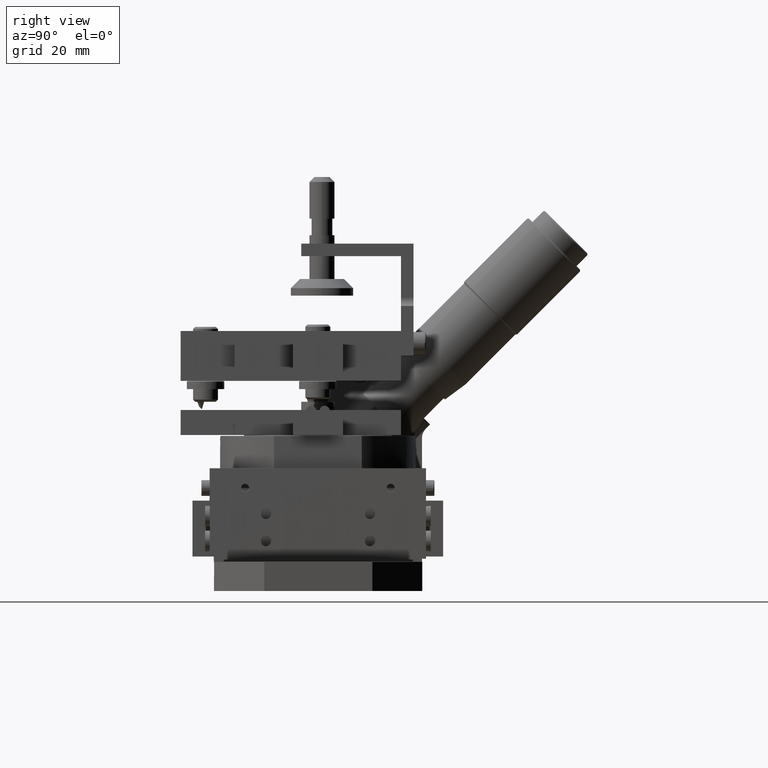
[diagram: clean part render]
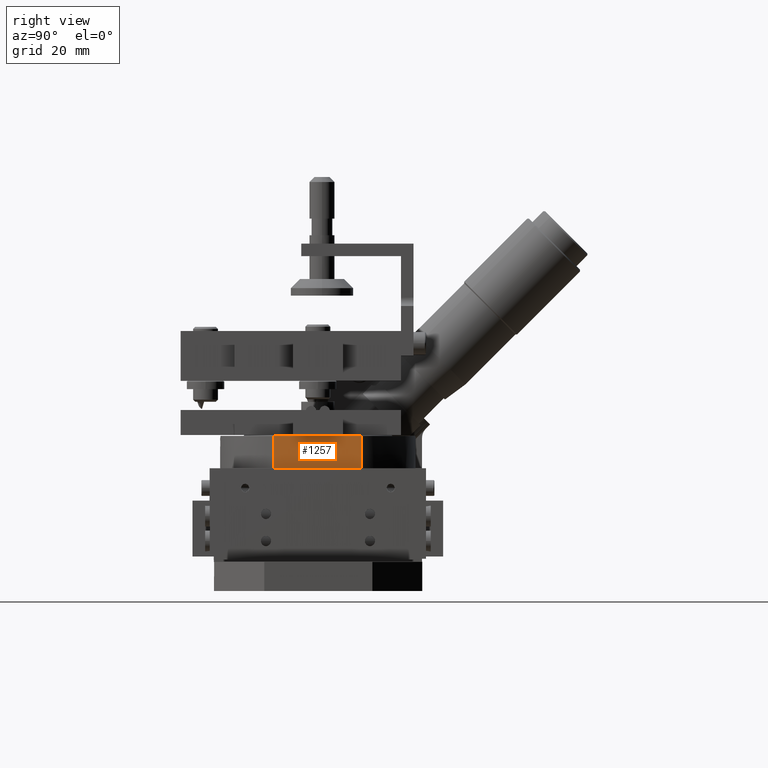
[diagram: same view with one face highlighted and labeled with its STEP entity id]
A machine part, right view. The second image highlights one B-rep face of the part: STEP entity #1257.
In plain terms, the highlighted face is a freeform B-spline surface patch.
Its self-contained STEP definition (entity closure, byte-faithful):
#1257=ADVANCED_FACE('',(#2461),#42735,.T.);
#2461=FACE_OUTER_BOUND('',#3748,.T.);
#3748=EDGE_LOOP('',(#6721,#6722,#6723,#6724));
#6721=ORIENTED_EDGE('',*,*,#35598,.F.);
#6722=ORIENTED_EDGE('',*,*,#35609,.T.);
#6723=ORIENTED_EDGE('',*,*,#35586,.F.);
#6724=ORIENTED_EDGE('',*,*,#35604,.F.);
#13082=PCURVE('',#42728,#19485);
#13106=PCURVE('',#42733,#19509);
#13115=PCURVE('',#43280,#19518);
#13124=PCURVE('',#42735,#19527);
#13125=PCURVE('',#42735,#19528);
#13126=PCURVE('',#42735,#19529);
#13127=PCURVE('',#42735,#19530);
#13135=PCURVE('',#43281,#19538);
#19485=DEFINITIONAL_REPRESENTATION('',(#26238),#93713);
#19509=DEFINITIONAL_REPRESENTATION('',(#26242),#93713);
#19518=DEFINITIONAL_REPRESENTATION('',(#26251),#93713);
#19527=DEFINITIONAL_REPRESENTATION('',(#26262),#93713);
#19528=DEFINITIONAL_REPRESENTATION('',(#26264),#93713);
#19529=DEFINITIONAL_REPRESENTATION('',(#26265),#93713);
#19530=DEFINITIONAL_REPRESENTATION('',(#26266),#93713);
#19538=DEFINITIONAL_REPRESENTATION('',(#26274),#93713);
#26237=B_SPLINE_CURVE_WITH_KNOTS('',1,(#60369,#60370),.UNSPECIFIED.,.F.,
 .F.,(2,2),(0.,21.0948912658332),.UNSPECIFIED.);
#26238=B_SPLINE_CURVE_WITH_KNOTS('',1,(#60371,#60372),.UNSPECIFIED.,.F.,
 .F.,(2,2),(0.,21.0948912658332),.UNSPECIFIED.);
#26241=B_SPLINE_CURVE_WITH_KNOTS('',1,(#60541,#60542),.UNSPECIFIED.,.F.,
 .F.,(2,2),(0.,21.0948912658332),.UNSPECIFIED.);
#26242=B_SPLINE_CURVE_WITH_KNOTS('',1,(#60543,#60544),.UNSPECIFIED.,.F.,
 .F.,(2,2),(0.,21.0948912658332),.UNSPECIFIED.);
#26250=B_SPLINE_CURVE_WITH_KNOTS('',1,(#60593,#60594),.UNSPECIFIED.,.F.,
 .F.,(2,2),(0.,7.8),.UNSPECIFIED.);
#26251=B_SPLINE_CURVE_WITH_KNOTS('',1,(#60595,#60596),.UNSPECIFIED.,.F.,
 .F.,(2,2),(0.,7.8),.UNSPECIFIED.);
#26262=B_SPLINE_CURVE_WITH_KNOTS('',1,(#60647,#60648),.UNSPECIFIED.,.F.,
 .F.,(2,2),(0.,21.0948912658332),.UNSPECIFIED.);
#26263=B_SPLINE_CURVE_WITH_KNOTS('',1,(#60649,#60650),.UNSPECIFIED.,.F.,
 .F.,(2,2),(0.,7.8),.UNSPECIFIED.);
#26264=B_SPLINE_CURVE_WITH_KNOTS('',1,(#60651,#60652),.UNSPECIFIED.,.F.,
 .F.,(2,2),(0.,7.8),.UNSPECIFIED.);
#26265=B_SPLINE_CURVE_WITH_KNOTS('',1,(#60653,#60654),.UNSPECIFIED.,.F.,
 .F.,(2,2),(0.,21.0948912658332),.UNSPECIFIED.);
#26266=B_SPLINE_CURVE_WITH_KNOTS('',1,(#60655,#60656),.UNSPECIFIED.,.F.,
 .F.,(2,2),(0.,7.8),.UNSPECIFIED.);
#26274=B_SPLINE_CURVE_WITH_KNOTS('',1,(#60677,#60678),.UNSPECIFIED.,.F.,
 .F.,(2,2),(0.,7.8),.UNSPECIFIED.);
#32246=SURFACE_CURVE('',#26237,(#13082,#13126),.PCURVE_S1.);
#32258=SURFACE_CURVE('',#26241,(#13106,#13124),.PCURVE_S1.);
#32264=SURFACE_CURVE('',#26250,(#13115,#13127),.PCURVE_S1.);
#32269=SURFACE_CURVE('',#26263,(#13125,#13135),.PCURVE_S1.);
#35586=EDGE_CURVE('',#41086,#41087,#32246,.T.);
#35598=EDGE_CURVE('',#41102,#41103,#32258,.T.);
#35604=EDGE_CURVE('',#41103,#41086,#32264,.T.);
#35609=EDGE_CURVE('',#41102,#41087,#32269,.T.);
#41086=VERTEX_POINT('',#51201);
#41087=VERTEX_POINT('',#51202);
#41102=VERTEX_POINT('',#51217);
#41103=VERTEX_POINT('',#51218);
#42728=B_SPLINE_SURFACE_WITH_KNOTS('',1,1,((#48105,#48106),(#48107,#48108)),
 .UNSPECIFIED.,.F.,.F.,.F.,(2,2),(2,2),(-30.1617532305088,30.1617532305098),
(-31.3601504183312,31.3601504183315),.UNSPECIFIED.);
#42733=B_SPLINE_SURFACE_WITH_KNOTS('',1,1,((#48125,#48126),(#48127,#48128)),
 .UNSPECIFIED.,.F.,.F.,.F.,(2,2),(2,2),(-28.348342223276,28.3483422232772),
(-25.3472048446021,25.3472048446027),.UNSPECIFIED.);
#42735=B_SPLINE_SURFACE_WITH_KNOTS('',1,1,((#48151,#48152),(#48153,#48154)),
 .UNSPECIFIED.,.F.,.F.,.F.,(2,2),(2,2),(-2.22956924044961,23.3244605062828),
(-0.900000000000059,8.7000000000001),.UNSPECIFIED.);
#43280=(
BOUNDED_SURFACE()
B_SPLINE_SURFACE(2,1,((#48133,#48134),(#48135,#48136),(#48137,#48138),(#48139,
#48140),(#48141,#48142),(#48143,#48144),(#48145,#48146),(#48147,#48148),
(#48149,#48150)),.UNSPECIFIED.,.T.,.F.,.F.)
B_SPLINE_SURFACE_WITH_KNOTS((3,2,2,2,3),(2,2),(0.,36.9134829689699,73.8269659379398,
110.74044890691,147.65393187588),(0.,9.60000000000031),.UNSPECIFIED.)
GEOMETRIC_REPRESENTATION_ITEM()
RATIONAL_B_SPLINE_SURFACE(((1.,1.),(0.707106781186548,0.707106781186548),
(1.,1.),(0.707106781186548,0.707106781186548),(1.,1.),(0.707106781186548,
0.707106781186548),(1.,1.),(0.707106781186548,0.707106781186548),(1.,1.)))
REPRESENTATION_ITEM('')
SURFACE()
);
#43281=(
BOUNDED_SURFACE()
B_SPLINE_SURFACE(2,1,((#48155,#48156),(#48157,#48158),(#48159,#48160),(#48161,
#48162),(#48163,#48164),(#48165,#48166),(#48167,#48168),(#48169,#48170),
(#48171,#48172)),.UNSPECIFIED.,.T.,.F.,.F.)
B_SPLINE_SURFACE_WITH_KNOTS((3,2,2,2,3),(2,2),(0.,36.9134829689699,73.8269659379398,
110.74044890691,147.65393187588),(0.,9.60000000000029),.UNSPECIFIED.)
GEOMETRIC_REPRESENTATION_ITEM()
RATIONAL_B_SPLINE_SURFACE(((1.,1.),(0.707106781186548,0.707106781186548),
(1.,1.),(0.707106781186548,0.707106781186548),(1.,1.),(0.707106781186548,
0.707106781186548),(1.,1.),(0.707106781186548,0.707106781186548),(1.,1.)))
REPRESENTATION_ITEM('')
SURFACE()
);
#48105=CARTESIAN_POINT('',(250.48515553731,66.6139220482595,-52.4570928903042));
#48106=CARTESIAN_POINT('',(250.527042572495,66.6139220482596,-115.177379740077));
#48107=CARTESIAN_POINT('',(190.161662528686,66.6139220482594,-52.4973792537928));
#48108=CARTESIAN_POINT('',(190.203549563871,66.6139220482595,-115.217666103565));
#48125=CARTESIAN_POINT('',(194.97828378429,58.8139220482593,-55.506033894403));
#48126=CARTESIAN_POINT('',(245.672682168429,58.8139220482594,-55.4721782130046));
#48127=CARTESIAN_POINT('',(195.016148016199,58.8139220482594,-112.202705697358));
#48128=CARTESIAN_POINT('',(245.710546400338,58.8139220482595,-112.168850015959));
#48133=CARTESIAN_POINT('',(220.344415092314,57.9139220482593,-107.337295080181));
#48134=CARTESIAN_POINT('',(220.344415092314,67.5139220482596,-107.337295080181));
#48135=CARTESIAN_POINT('',(196.844561967314,57.9139220482593,-107.337295080181));
#48136=CARTESIAN_POINT('',(196.844561967314,67.5139220482596,-107.337295080181));
#48137=CARTESIAN_POINT('',(196.844561967314,57.9139220482593,-83.8374419551806));
#48138=CARTESIAN_POINT('',(196.844561967314,67.5139220482596,-83.8374419551806));
#48139=CARTESIAN_POINT('',(196.844561967314,57.9139220482593,-60.3375888301804));
#48140=CARTESIAN_POINT('',(196.844561967314,67.5139220482596,-60.3375888301804));
#48141=CARTESIAN_POINT('',(220.344415092314,57.9139220482593,-60.3375888301804));
#48142=CARTESIAN_POINT('',(220.344415092314,67.5139220482596,-60.3375888301804));
#48143=CARTESIAN_POINT('',(243.844268217314,57.9139220482593,-60.3375888301804));
#48144=CARTESIAN_POINT('',(243.844268217314,67.5139220482596,-60.3375888301804));
#48145=CARTESIAN_POINT('',(243.844268217314,57.9139220482593,-83.8374419551806));
#48146=CARTESIAN_POINT('',(243.844268217314,67.5139220482596,-83.8374419551806));
#48147=CARTESIAN_POINT('',(243.844268217314,57.9139220482593,-107.337295080181));
#48148=CARTESIAN_POINT('',(243.844268217314,67.5139220482596,-107.337295080181));
#48149=CARTESIAN_POINT('',(220.344415092314,57.9139220482593,-107.337295080181));
#48150=CARTESIAN_POINT('',(220.344415092314,67.5139220482596,-107.337295080181));
#48151=CARTESIAN_POINT('',(241.335746176084,57.9139220482593,-71.0464054091064));
#48152=CARTESIAN_POINT('',(241.335746176084,67.5139220482595,-71.0464054091064));
#48153=CARTESIAN_POINT('',(241.352812142428,57.9139220482594,-96.600429457183));
#48154=CARTESIAN_POINT('',(241.352812142428,67.5139220482596,-96.600429457183));
#48155=CARTESIAN_POINT('',(220.344415092314,57.9139220482592,-60.3375888301804));
#48156=CARTESIAN_POINT('',(220.344415092314,67.5139220482595,-60.3375888301804));
#48157=CARTESIAN_POINT('',(243.844268217314,57.9139220482592,-60.3375888301804));
#48158=CARTESIAN_POINT('',(243.844268217314,67.5139220482595,-60.3375888301804));
#48159=CARTESIAN_POINT('',(243.844268217314,57.9139220482592,-83.8374419551806));
#48160=CARTESIAN_POINT('',(243.844268217314,67.5139220482595,-83.8374419551806));
#48161=CARTESIAN_POINT('',(243.844268217314,57.9139220482592,-107.337295080181));
#48162=CARTESIAN_POINT('',(243.844268217314,67.5139220482595,-107.337295080181));
#48163=CARTESIAN_POINT('',(220.344415092314,57.9139220482592,-107.337295080181));
#48164=CARTESIAN_POINT('',(220.344415092314,67.5139220482595,-107.337295080181));
#48165=CARTESIAN_POINT('',(196.844561967314,57.9139220482592,-107.337295080181));
#48166=CARTESIAN_POINT('',(196.844561967314,67.5139220482595,-107.337295080181));
#48167=CARTESIAN_POINT('',(196.844561967314,57.9139220482592,-83.8374419551806));
#48168=CARTESIAN_POINT('',(196.844561967314,67.5139220482595,-83.8374419551806));
#48169=CARTESIAN_POINT('',(196.844561967314,57.9139220482592,-60.3375888301804));
#48170=CARTESIAN_POINT('',(196.844561967314,67.5139220482595,-60.3375888301804));
#48171=CARTESIAN_POINT('',(220.344415092314,57.9139220482592,-60.3375888301804));
#48172=CARTESIAN_POINT('',(220.344415092314,67.5139220482595,-60.3375888301804));
#51201=CARTESIAN_POINT('',(241.337235168388,66.6139220482594,-73.2759741523527));
#51202=CARTESIAN_POINT('',(241.351323150124,66.6139220482595,-94.3708607139366));
#51217=CARTESIAN_POINT('',(241.351323150124,58.8139220482595,-94.3708607139366));
#51218=CARTESIAN_POINT('',(241.337235168388,58.8139220482594,-73.2759741523527));
#60369=CARTESIAN_POINT('',(241.337235168388,66.6139220482594,-73.2759741523527));
#60370=CARTESIAN_POINT('',(241.351323150124,66.6139220482595,-94.3708607139366));
#60371=CARTESIAN_POINT('',(-20.9999312499979,-10.5473831329163));
#60372=CARTESIAN_POINT('',(-20.9999312499975,10.5475081329168));
#60541=CARTESIAN_POINT('',(241.351323150124,58.8139220482595,-94.3708607139366));
#60542=CARTESIAN_POINT('',(241.337235168388,58.8139220482594,-73.2759741523527));
#60543=CARTESIAN_POINT('',(10.547445632917,20.9998687500005));
#60544=CARTESIAN_POINT('',(-10.5474456329161,20.9998687500009));
#60593=CARTESIAN_POINT('',(241.337235168388,58.8139220482594,-73.2759741523527));
#60594=CARTESIAN_POINT('',(241.337235168388,66.6139220482594,-73.2759741523527));
#60595=CARTESIAN_POINT('',(99.4579505490397,0.900000000000151));
#60596=CARTESIAN_POINT('',(99.4579505490397,8.70000000000019));
#60647=CARTESIAN_POINT('',(21.0948912658332,5.61489193502091E-14));
#60648=CARTESIAN_POINT('',(0.,0.));
#60649=CARTESIAN_POINT('',(241.351323150124,58.8139220482595,-94.3708607139366));
#60650=CARTESIAN_POINT('',(241.351323150124,66.6139220482595,-94.3708607139366));
#60651=CARTESIAN_POINT('',(21.0948912658332,5.61489193502091E-14));
#60652=CARTESIAN_POINT('',(21.0948912658332,7.80000000000005));
#60653=CARTESIAN_POINT('',(1.60015374216104E-14,7.80000000000001));
#60654=CARTESIAN_POINT('',(21.0948912658332,7.80000000000005));
#60655=CARTESIAN_POINT('',(0.,0.));
#60656=CARTESIAN_POINT('',(1.60015374216104E-14,7.80000000000001));
#60677=CARTESIAN_POINT('',(48.1654487185452,0.900000000000237));
#60678=CARTESIAN_POINT('',(48.1654487185453,8.70000000000028));
#93713=(
GEOMETRIC_REPRESENTATION_CONTEXT(2)
PARAMETRIC_REPRESENTATION_CONTEXT()
REPRESENTATION_CONTEXT('pspace','')
);